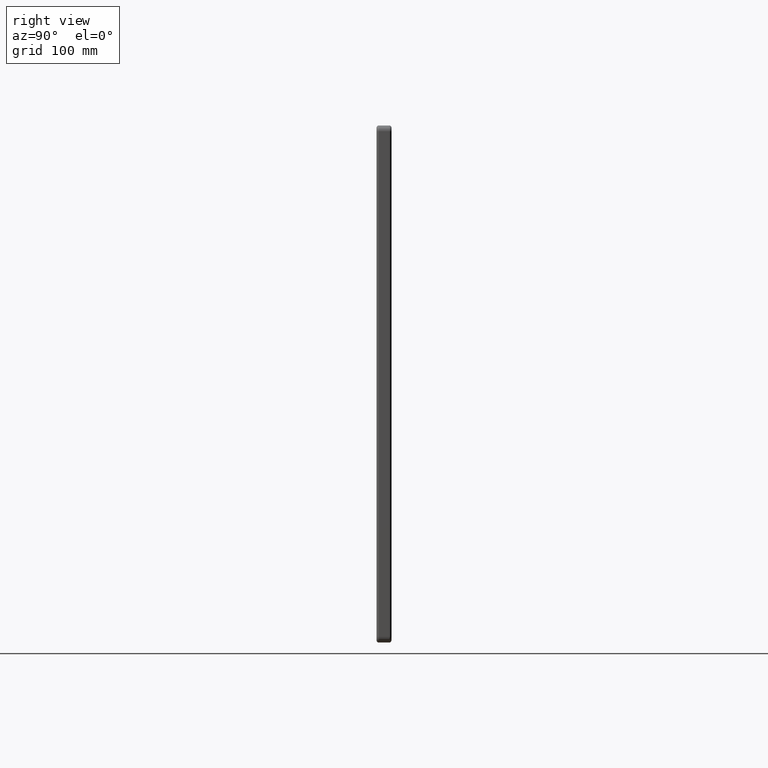
[diagram: clean part render]
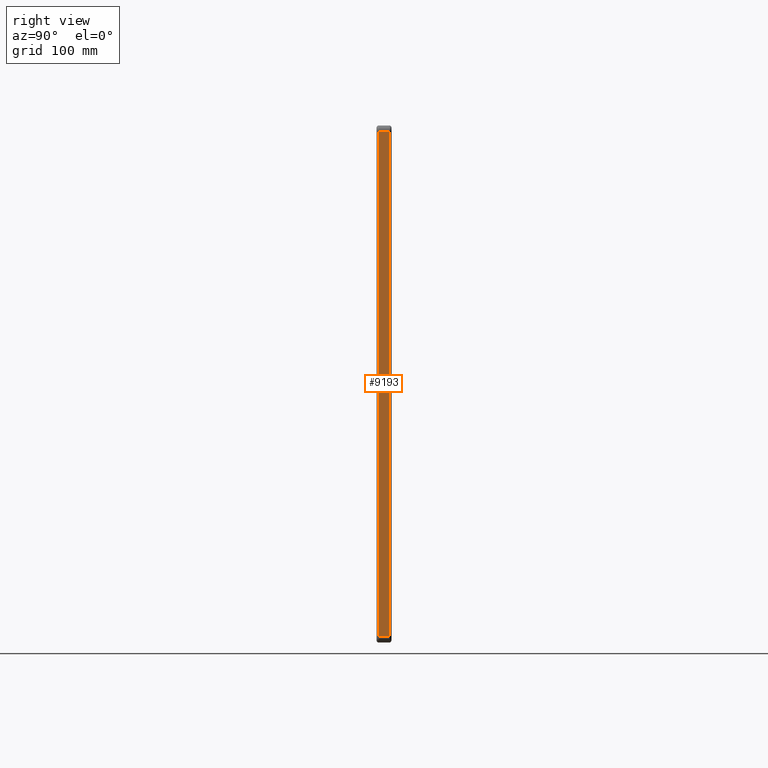
[diagram: same view with one face highlighted and labeled with its STEP entity id]
A machine part, right view. The second image highlights one B-rep face of the part: STEP entity #9193.
In plain terms, the highlighted planar face has unit normal (-1, 0, 0).
Its self-contained STEP definition (entity closure, byte-faithful):
#1011 = VECTOR ( 'NONE', #7249, 1000.000000000000000 ) ;
#1514 = CARTESIAN_POINT ( 'NONE',  ( 224.9999999999999100, 2.000000000000000000, -220.0000000000000000 ) ) ;
#2427 = CARTESIAN_POINT ( 'NONE',  ( 224.9999999999999700, 11.00000000000000000, -220.0000000000000000 ) ) ;
#2670 = FACE_OUTER_BOUND ( 'NONE', #19841, .T. ) ;
#3041 = CARTESIAN_POINT ( 'NONE',  ( 224.9999999999999100, 13.00000000000000000, -220.0000000000000000 ) ) ;
#3126 = DIRECTION ( 'NONE',  ( 0.0000000000000000000, 0.0000000000000000000, 1.000000000000000000 ) ) ;
#4612 = EDGE_CURVE ( 'NONE', #12532, #7537, #13381, .T. ) ;
#4921 = CARTESIAN_POINT ( 'NONE',  ( 224.9999999999999100, 11.00000000000000000, 220.0000000000000000 ) ) ;
#5252 = CARTESIAN_POINT ( 'NONE',  ( 224.9999999999999700, 13.00000000000000000, -220.0000000000000000 ) ) ;
#6024 = ORIENTED_EDGE ( 'NONE', *, *, #15915, .F. ) ;
#6617 = CARTESIAN_POINT ( 'NONE',  ( 224.9999999999999100, 2.000000000000001800, 220.0000000000000000 ) ) ;
#7249 = DIRECTION ( 'NONE',  ( -0.0000000000000000000, -1.000000000000000000, -0.0000000000000000000 ) ) ;
#7519 = EDGE_CURVE ( 'NONE', #22725, #12532, #22172, .T. ) ;
#7537 = VERTEX_POINT ( 'NONE', #21476 ) ;
#9053 = CARTESIAN_POINT ( 'NONE',  ( 224.9999999999999100, 13.00000000000000000, 220.0000000000000000 ) ) ;
#9193 = ADVANCED_FACE ( 'NONE', ( #2670 ), #15275, .F. ) ;
#9217 = EDGE_CURVE ( 'NONE', #19499, #22725, #11293, .T. ) ;
#9557 = ORIENTED_EDGE ( 'NONE', *, *, #9217, .T. ) ;
#9749 = LINE ( 'NONE', #5252, #21690 ) ;
#11293 = LINE ( 'NONE', #4921, #22144 ) ;
#11512 = ORIENTED_EDGE ( 'NONE', *, *, #7519, .T. ) ;
#12322 = DIRECTION ( 'NONE',  ( 0.0000000000000000000, 0.0000000000000000000, -1.000000000000000000 ) ) ;
#12532 = VERTEX_POINT ( 'NONE', #6617 ) ;
#12883 = AXIS2_PLACEMENT_3D ( 'NONE', #3041, #15504, #3126 ) ;
#13381 = LINE ( 'NONE', #1514, #13616 ) ;
#13616 = VECTOR ( 'NONE', #12322, 1000.000000000000000 ) ;
#14127 = DIRECTION ( 'NONE',  ( -0.0000000000000000000, -1.000000000000000000, -0.0000000000000000000 ) ) ;
#14762 = ORIENTED_EDGE ( 'NONE', *, *, #4612, .T. ) ;
#15275 = PLANE ( 'NONE',  #12883 ) ;
#15356 = DIRECTION ( 'NONE',  ( -0.0000000000000000000, -0.0000000000000000000, 1.000000000000000000 ) ) ;
#15504 = DIRECTION ( 'NONE',  ( -1.000000000000000000, 0.0000000000000000000, 0.0000000000000000000 ) ) ;
#15915 = EDGE_CURVE ( 'NONE', #19499, #7537, #9749, .T. ) ;
#17447 = CARTESIAN_POINT ( 'NONE',  ( 224.9999999999999100, 11.00000000000000000, 220.0000000000000000 ) ) ;
#19499 = VERTEX_POINT ( 'NONE', #2427 ) ;
#19841 = EDGE_LOOP ( 'NONE', ( #11512, #14762, #6024, #9557 ) ) ;
#21476 = CARTESIAN_POINT ( 'NONE',  ( 224.9999999999999700, 2.000000000000003600, -220.0000000000000000 ) ) ;
#21690 = VECTOR ( 'NONE', #14127, 1000.000000000000000 ) ;
#22144 = VECTOR ( 'NONE', #15356, 1000.000000000000000 ) ;
#22172 = LINE ( 'NONE', #9053, #1011 ) ;
#22725 = VERTEX_POINT ( 'NONE', #17447 ) ;